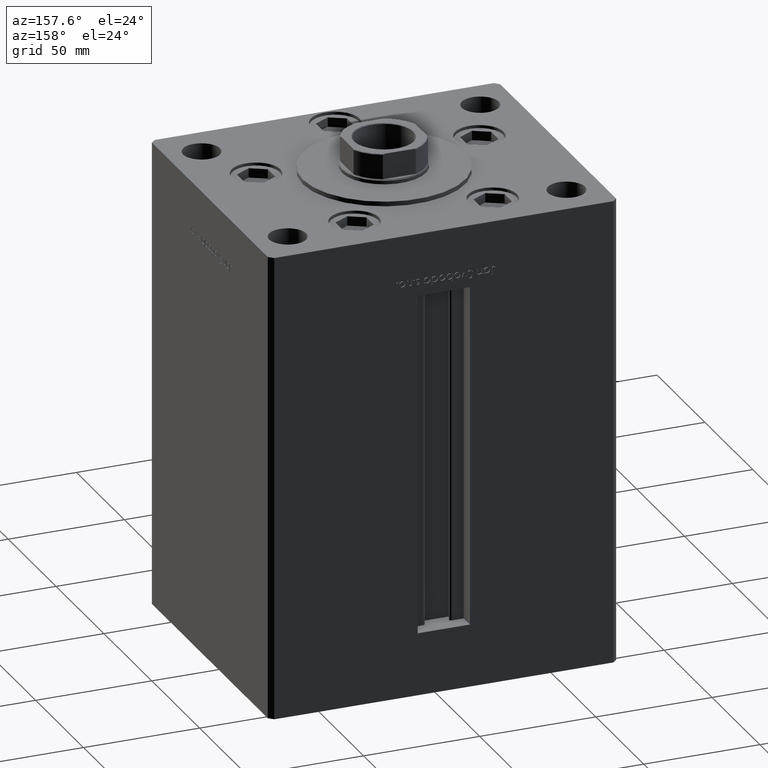
[diagram: clean part render]
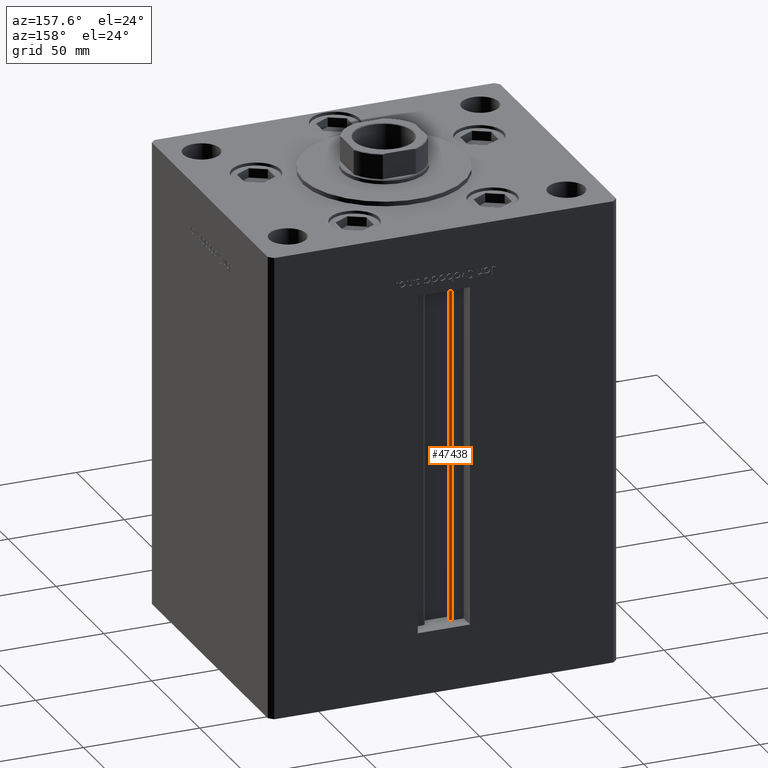
[diagram: same view with one face highlighted and labeled with its STEP entity id]
A machine part, auxiliary view. The second image highlights one B-rep face of the part: STEP entity #47438.
In plain terms, the highlighted cylindrical surface (edge-blend (fillet) strip) has radius 0.9333 mm, axis along (0, 0, 1).
Its self-contained STEP definition (entity closure, byte-faithful):
#851 = CYLINDRICAL_SURFACE ( 'NONE', #14846, 0.9333333333340068094 ) ;
#1227 = CARTESIAN_POINT ( 'NONE',  ( -5.249999999999994671, 55.06666666666598786, 0.000000000000000000 ) ) ;
#2236 = CIRCLE ( 'NONE', #31686, 0.9333333333340068094 ) ;
#2389 = CARTESIAN_POINT ( 'NONE',  ( -5.249999999999994671, 55.06666666666598786, 147.0000000000000000 ) ) ;
#3834 = DIRECTION ( 'NONE',  ( 0.000000000000000000, 0.000000000000000000, -1.000000000000000000 ) ) ;
#4797 = FACE_OUTER_BOUND ( 'NONE', #17184, .T. ) ;
#6321 = CARTESIAN_POINT ( 'NONE',  ( -6.183333333334001480, 55.99999999999999289, 0.000000000000000000 ) ) ;
#7489 = CARTESIAN_POINT ( 'NONE',  ( -5.249999999999994671, 55.06666666666598786, 0.000000000000000000 ) ) ;
#8758 = CARTESIAN_POINT ( 'NONE',  ( -6.183333333334001480, 55.06666666666598786, 0.000000000000000000 ) ) ;
#9946 = CARTESIAN_POINT ( 'NONE',  ( -6.183333333334001480, 55.99999999999999289, 147.0000000000000000 ) ) ;
#10799 = DIRECTION ( 'NONE',  ( -0.000000000000000000, -0.000000000000000000, 1.000000000000000000 ) ) ;
#13299 = CIRCLE ( 'NONE', #33449, 0.9333333333340068094 ) ;
#14846 = AXIS2_PLACEMENT_3D ( 'NONE', #8758, #48528, #24567 ) ;
#16416 = CARTESIAN_POINT ( 'NONE',  ( -6.183333333334001480, 55.06666666666598786, 0.000000000000000000 ) ) ;
#17184 = EDGE_LOOP ( 'NONE', ( #39484, #24883, #35272, #24510 ) ) ;
#19922 = DIRECTION ( 'NONE',  ( 1.000000000000000000, 0.000000000000000000, 0.000000000000000000 ) ) ;
#20146 = VERTEX_POINT ( 'NONE', #2389 ) ;
#20744 = LINE ( 'NONE', #1227, #42295 ) ;
#23678 = EDGE_CURVE ( 'NONE', #42830, #20146, #20744, .T. ) ;
#24510 = ORIENTED_EDGE ( 'NONE', *, *, #47186, .T. ) ;
#24567 = DIRECTION ( 'NONE',  ( 1.000000000000000000, 0.000000000000000000, 0.000000000000000000 ) ) ;
#24883 = ORIENTED_EDGE ( 'NONE', *, *, #51018, .F. ) ;
#29939 = EDGE_CURVE ( 'NONE', #36704, #36807, #34774, .T. ) ;
#31686 = AXIS2_PLACEMENT_3D ( 'NONE', #39918, #3834, #19922 ) ;
#33449 = AXIS2_PLACEMENT_3D ( 'NONE', #16416, #48290, #35926 ) ;
#33640 = DIRECTION ( 'NONE',  ( -0.000000000000000000, -0.000000000000000000, 1.000000000000000000 ) ) ;
#34774 = LINE ( 'NONE', #6321, #46543 ) ;
#35272 = ORIENTED_EDGE ( 'NONE', *, *, #29939, .T. ) ;
#35926 = DIRECTION ( 'NONE',  ( 1.000000000000000000, 0.000000000000000000, 0.000000000000000000 ) ) ;
#36704 = VERTEX_POINT ( 'NONE', #43182 ) ;
#36807 = VERTEX_POINT ( 'NONE', #9946 ) ;
#39484 = ORIENTED_EDGE ( 'NONE', *, *, #23678, .F. ) ;
#39918 = CARTESIAN_POINT ( 'NONE',  ( -6.183333333334001480, 55.06666666666598786, 147.0000000000000000 ) ) ;
#42295 = VECTOR ( 'NONE', #33640, 1000.000000000000000 ) ;
#42830 = VERTEX_POINT ( 'NONE', #7489 ) ;
#43182 = CARTESIAN_POINT ( 'NONE',  ( -6.183333333334001480, 55.99999999999999289, 0.000000000000000000 ) ) ;
#46543 = VECTOR ( 'NONE', #10799, 1000.000000000000000 ) ;
#47186 = EDGE_CURVE ( 'NONE', #36807, #20146, #2236, .T. ) ;
#47438 = ADVANCED_FACE ( 'NONE', ( #4797 ), #851, .T. ) ;
#48290 = DIRECTION ( 'NONE',  ( -0.000000000000000000, -0.000000000000000000, -1.000000000000000000 ) ) ;
#48528 = DIRECTION ( 'NONE',  ( -0.000000000000000000, -0.000000000000000000, 1.000000000000000000 ) ) ;
#51018 = EDGE_CURVE ( 'NONE', #36704, #42830, #13299, .T. ) ;